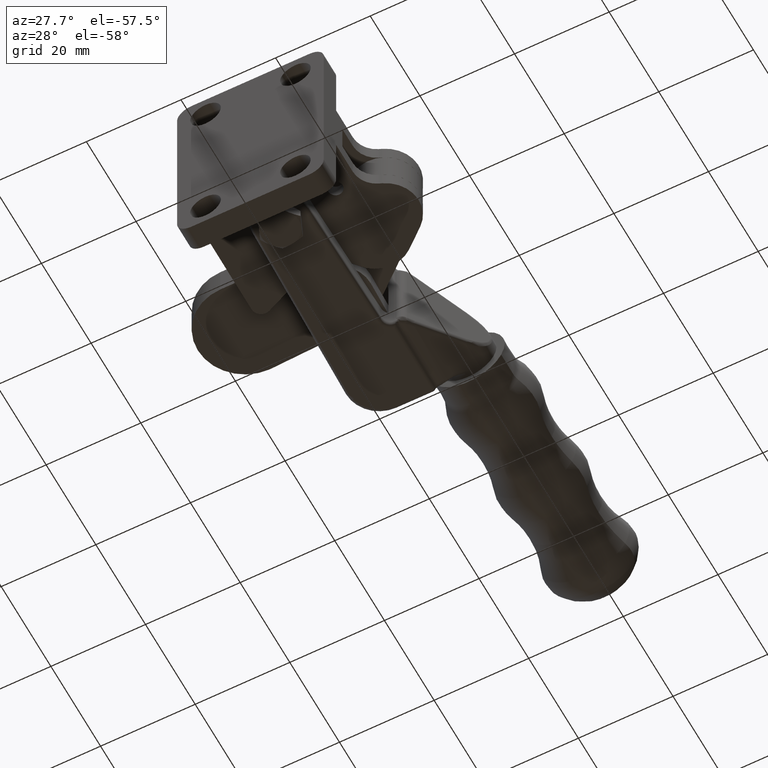
[diagram: clean part render]
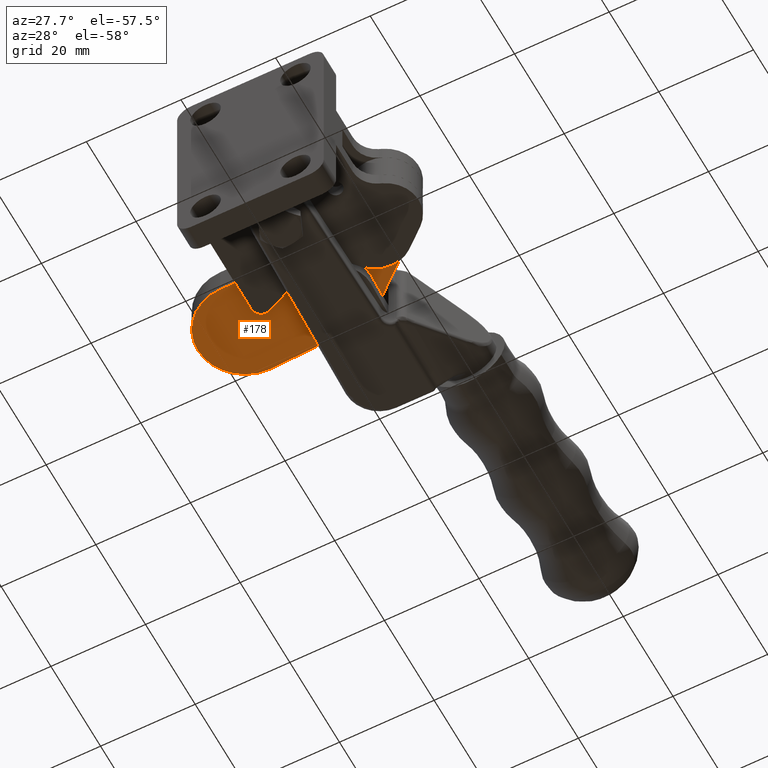
[diagram: same view with one face highlighted and labeled with its STEP entity id]
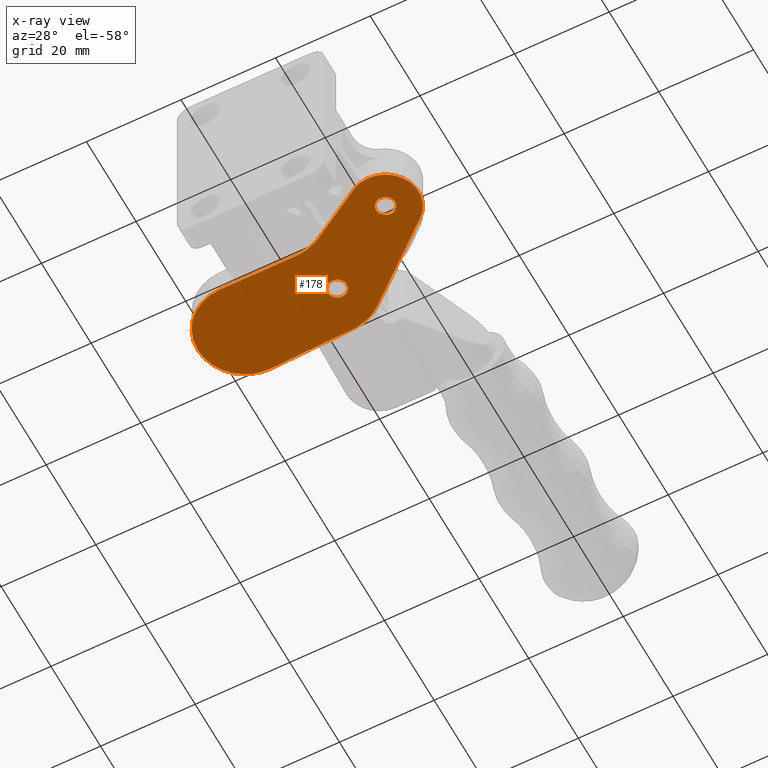
[diagram: x-ray of the same camera — body ghosted, the highlighted face saturated]
A machine part, auxiliary view. The second image highlights one B-rep face of the part: STEP entity #178.
The next image is the same camera in x-ray: the body ghosted, the highlighted face saturated — about 0% of this face is hidden behind the body in this view.
In plain terms, the highlighted planar face has unit normal (0, 0, 1).
Its self-contained STEP definition (entity closure, byte-faithful):
#9 = EDGE_CURVE ( 'NONE', #2739, #682, #1908, .T. ) ;
#144 = DIRECTION ( 'NONE',  ( 1.000000000000000000, 0.0000000000000000000, 0.0000000000000000000 ) ) ;
#146 = FACE_OUTER_BOUND ( 'NONE', #4898, .T. ) ;
#149 = EDGE_CURVE ( 'NONE', #3020, #4327, #3867, .T. ) ;
#178 = ADVANCED_FACE ( 'NONE', ( #146, #7559, #2011 ), #5273, .F. ) ;
#272 = AXIS2_PLACEMENT_3D ( 'NONE', #7434, #3274, #8154 ) ;
#313 = ORIENTED_EDGE ( 'NONE', *, *, #9, .F. ) ;
#348 = VERTEX_POINT ( 'NONE', #7626 ) ;
#405 = CARTESIAN_POINT ( 'NONE',  ( -11.69212390313459300, 18.94870788012530500, -3.000000000000000000 ) ) ;
#465 = DIRECTION ( 'NONE',  ( 0.0000000000000000000, 0.0000000000000000000, 1.000000000000000000 ) ) ;
#507 = ORIENTED_EDGE ( 'NONE', *, *, #1785, .F. ) ;
#515 = CARTESIAN_POINT ( 'NONE',  ( -14.63132215791628400, 0.5852726611852848700, -3.000000000000000000 ) ) ;
#525 = AXIS2_PLACEMENT_3D ( 'NONE', #4675, #465, #5372 ) ;
#538 = EDGE_LOOP ( 'NONE', ( #5590, #3150 ) ) ;
#579 = DIRECTION ( 'NONE',  ( 1.000000000000000000, 0.0000000000000000000, 0.0000000000000000000 ) ) ;
#682 = VERTEX_POINT ( 'NONE', #820 ) ;
#704 = EDGE_CURVE ( 'NONE', #8363, #772, #2981, .T. ) ;
#772 = VERTEX_POINT ( 'NONE', #405 ) ;
#820 = CARTESIAN_POINT ( 'NONE',  ( -45.99999999999999300, 12.00000000000000000, -3.000000000000000000 ) ) ;
#980 = ORIENTED_EDGE ( 'NONE', *, *, #5103, .F. ) ;
#1021 = ORIENTED_EDGE ( 'NONE', *, *, #6741, .F. ) ;
#1022 = DIRECTION ( 'NONE',  ( 0.0000000000000000000, 0.0000000000000000000, 1.000000000000000000 ) ) ;
#1254 = ORIENTED_EDGE ( 'NONE', *, *, #8752, .F. ) ;
#1357 = CARTESIAN_POINT ( 'NONE',  ( 2.000000000000000000, 2.449293598294706400E-016, -3.000000000000000000 ) ) ;
#1578 = CARTESIAN_POINT ( 'NONE',  ( -18.52999999999999800, 12.01000000000000000, -3.000000000000000000 ) ) ;
#1596 = ORIENTED_EDGE ( 'NONE', *, *, #1706, .F. ) ;
#1706 = EDGE_CURVE ( 'NONE', #772, #5975, #5257, .T. ) ;
#1767 = DIRECTION ( 'NONE',  ( 0.8585272661185280300, -0.5127679137105266600, 0.0000000000000000000 ) ) ;
#1785 = EDGE_CURVE ( 'NONE', #348, #8363, #6870, .T. ) ;
#1801 = AXIS2_PLACEMENT_3D ( 'NONE', #5201, #3056, #144 ) ;
#1820 = DIRECTION ( 'NONE',  ( 1.000000000000000000, 0.0000000000000000000, 0.0000000000000000000 ) ) ;
#1847 = CARTESIAN_POINT ( 'NONE',  ( -11.69212390313459700, 18.94870788012530100, -3.000000000000000000 ) ) ;
#1908 = CIRCLE ( 'NONE', #2609, 9.999999999999994700 ) ;
#2011 = FACE_BOUND ( 'NONE', #538, .T. ) ;
#2144 = CARTESIAN_POINT ( 'NONE',  ( -36.00000000000000000, 2.000000000000005300, -3.000000000000000000 ) ) ;
#2165 = DIRECTION ( 'NONE',  ( 0.0000000000000000000, 0.0000000000000000000, 1.000000000000000000 ) ) ;
#2274 = CIRCLE ( 'NONE', #272, 9.999999999999994700 ) ;
#2519 = DIRECTION ( 'NONE',  ( 1.000000000000000000, 0.0000000000000000000, -0.0000000000000000000 ) ) ;
#2609 = AXIS2_PLACEMENT_3D ( 'NONE', #3543, #7710, #7003 ) ;
#2659 = AXIS2_PLACEMENT_3D ( 'NONE', #2947, #7809, #3645 ) ;
#2739 = VERTEX_POINT ( 'NONE', #4241 ) ;
#2819 = AXIS2_PLACEMENT_3D ( 'NONE', #5219, #1022, #5927 ) ;
#2947 = CARTESIAN_POINT ( 'NONE',  ( -19.75900129502155200, -7.999999999999992900, -3.000000000000000000 ) ) ;
#2981 = LINE ( 'NONE', #1847, #4844 ) ;
#3020 = VERTEX_POINT ( 'NONE', #1357 ) ;
#3056 = DIRECTION ( 'NONE',  ( 0.0000000000000000000, 0.0000000000000000000, 1.000000000000000000 ) ) ;
#3150 = ORIENTED_EDGE ( 'NONE', *, *, #149, .T. ) ;
#3274 = DIRECTION ( 'NONE',  ( 0.0000000000000000000, 0.0000000000000000000, 1.000000000000000000 ) ) ;
#3436 = CIRCLE ( 'NONE', #525, 2.000000000000000000 ) ;
#3520 = DIRECTION ( 'NONE',  ( 1.000000000000000000, 0.0000000000000000000, 0.0000000000000000000 ) ) ;
#3543 = CARTESIAN_POINT ( 'NONE',  ( -36.00000000000000000, 12.00000000000000000, -3.000000000000000000 ) ) ;
#3546 = CARTESIAN_POINT ( 'NONE',  ( -14.52999999999999900, 12.01000000000000000, -3.000000000000000000 ) ) ;
#3615 = EDGE_CURVE ( 'NONE', #7963, #7064, #8930, .T. ) ;
#3645 = DIRECTION ( 'NONE',  ( 1.000000000000000000, 0.0000000000000000000, 0.0000000000000000000 ) ) ;
#3660 = LINE ( 'NONE', #7823, #7135 ) ;
#3828 = LINE ( 'NONE', #5964, #7091 ) ;
#3867 = CIRCLE ( 'NONE', #6627, 2.000000000000000000 ) ;
#4062 = CARTESIAN_POINT ( 'NONE',  ( -17.72914583204646600, 21.28062218045600700, -3.000000000000000000 ) ) ;
#4146 = AXIS2_PLACEMENT_3D ( 'NONE', #6185, #7882, #579 ) ;
#4147 = DIRECTION ( 'NONE',  ( -0.7660444431189772400, 0.6427876096865403600, -0.0000000000000000000 ) ) ;
#4241 = CARTESIAN_POINT ( 'NONE',  ( -36.10599461755926100, 21.99943824127377600, -3.000000000000000000 ) ) ;
#4246 = EDGE_CURVE ( 'NONE', #5725, #7154, #4662, .T. ) ;
#4327 = VERTEX_POINT ( 'NONE', #8544 ) ;
#4363 = ORIENTED_EDGE ( 'NONE', *, *, #3615, .F. ) ;
#4369 = DIRECTION ( 'NONE',  ( -0.9992358731520467600, 0.03908541679535369700, -0.0000000000000000000 ) ) ;
#4537 = EDGE_CURVE ( 'NONE', #4327, #3020, #3436, .T. ) ;
#4558 = EDGE_LOOP ( 'NONE', ( #5804, #6922 ) ) ;
#4610 = CARTESIAN_POINT ( 'NONE',  ( 0.0000000000000000000, 0.0000000000000000000, -3.000000000000000000 ) ) ;
#4662 = CIRCLE ( 'NONE', #7400, 2.000000000000000000 ) ;
#4675 = CARTESIAN_POINT ( 'NONE',  ( 0.0000000000000000000, 0.0000000000000000000, -3.000000000000000000 ) ) ;
#4844 = VECTOR ( 'NONE', #4147, 999.9999999999998900 ) ;
#4898 = EDGE_LOOP ( 'NONE', ( #507, #6153, #1021, #4363, #1254, #313, #980, #1596, #6888 ) ) ;
#5103 = EDGE_CURVE ( 'NONE', #5975, #2739, #3660, .T. ) ;
#5165 = EDGE_CURVE ( 'NONE', #7154, #5725, #7907, .T. ) ;
#5201 = CARTESIAN_POINT ( 'NONE',  ( -18.12000000000000100, 11.28826344893553500, -3.000000000000000000 ) ) ;
#5219 = CARTESIAN_POINT ( 'NONE',  ( -16.53000000000000100, 12.01000000000000000, -3.000000000000000000 ) ) ;
#5257 = CIRCLE ( 'NONE', #1801, 10.00000000000000000 ) ;
#5273 = PLANE ( 'NONE',  #8043 ) ;
#5299 = CARTESIAN_POINT ( 'NONE',  ( 0.0000000000000000000, 0.0000000000000000000, -3.000000000000000000 ) ) ;
#5372 = DIRECTION ( 'NONE',  ( 1.000000000000000000, 0.0000000000000000000, 0.0000000000000000000 ) ) ;
#5590 = ORIENTED_EDGE ( 'NONE', *, *, #4537, .T. ) ;
#5725 = VERTEX_POINT ( 'NONE', #3546 ) ;
#5804 = ORIENTED_EDGE ( 'NONE', *, *, #5165, .T. ) ;
#5927 = DIRECTION ( 'NONE',  ( 1.000000000000000000, 0.0000000000000000000, 0.0000000000000000000 ) ) ;
#5964 = CARTESIAN_POINT ( 'NONE',  ( -14.63132215791628400, 0.5852726611852848700, -3.000000000000000000 ) ) ;
#5975 = VERTEX_POINT ( 'NONE', #4062 ) ;
#6019 = DIRECTION ( 'NONE',  ( 0.0000000000000000000, 0.0000000000000000000, 1.000000000000000000 ) ) ;
#6153 = ORIENTED_EDGE ( 'NONE', *, *, #8038, .F. ) ;
#6185 = CARTESIAN_POINT ( 'NONE',  ( 0.0000000000000000000, 0.0000000000000000000, -3.000000000000000000 ) ) ;
#6354 = CARTESIAN_POINT ( 'NONE',  ( -16.53000000000000100, 12.01000000000000000, -3.000000000000000000 ) ) ;
#6627 = AXIS2_PLACEMENT_3D ( 'NONE', #5299, #6019, #1820 ) ;
#6682 = DIRECTION ( 'NONE',  ( 0.0000000000000000000, 0.0000000000000000000, 1.000000000000000000 ) ) ;
#6741 = EDGE_CURVE ( 'NONE', #7064, #7782, #8974, .T. ) ;
#6870 = CIRCLE ( 'NONE', #4146, 7.000000000000015100 ) ;
#6888 = ORIENTED_EDGE ( 'NONE', *, *, #704, .F. ) ;
#6922 = ORIENTED_EDGE ( 'NONE', *, *, #4246, .T. ) ;
#7003 = DIRECTION ( 'NONE',  ( 1.000000000000000000, 0.0000000000000000000, 0.0000000000000000000 ) ) ;
#7031 = DIRECTION ( 'NONE',  ( 1.000000000000000000, 0.0000000000000000000, 0.0000000000000000000 ) ) ;
#7064 = VERTEX_POINT ( 'NONE', #8467 ) ;
#7091 = VECTOR ( 'NONE', #1767, 1000.000000000000100 ) ;
#7135 = VECTOR ( 'NONE', #4369, 1000.000000000000200 ) ;
#7154 = VERTEX_POINT ( 'NONE', #1578 ) ;
#7400 = AXIS2_PLACEMENT_3D ( 'NONE', #6354, #2165, #7031 ) ;
#7434 = CARTESIAN_POINT ( 'NONE',  ( -36.00000000000000000, 12.00000000000000000, -3.000000000000000000 ) ) ;
#7559 = FACE_BOUND ( 'NONE', #4558, .T. ) ;
#7626 = CARTESIAN_POINT ( 'NONE',  ( -3.589375395973696000, -6.009690862829709000, -3.000000000000000000 ) ) ;
#7710 = DIRECTION ( 'NONE',  ( 0.0000000000000000000, 0.0000000000000000000, 1.000000000000000000 ) ) ;
#7782 = VERTEX_POINT ( 'NONE', #515 ) ;
#7809 = DIRECTION ( 'NONE',  ( -0.0000000000000000000, -0.0000000000000000000, -1.000000000000000000 ) ) ;
#7823 = CARTESIAN_POINT ( 'NONE',  ( -36.10599461755926100, 21.99943824127377600, -3.000000000000000000 ) ) ;
#7882 = DIRECTION ( 'NONE',  ( 0.0000000000000000000, 0.0000000000000000000, 1.000000000000000000 ) ) ;
#7907 = CIRCLE ( 'NONE', #2819, 2.000000000000000000 ) ;
#7963 = VERTEX_POINT ( 'NONE', #8664 ) ;
#8038 = EDGE_CURVE ( 'NONE', #7782, #348, #3828, .T. ) ;
#8043 = AXIS2_PLACEMENT_3D ( 'NONE', #4610, #6682, #2519 ) ;
#8154 = DIRECTION ( 'NONE',  ( 1.000000000000000000, 0.0000000000000000000, 0.0000000000000000000 ) ) ;
#8285 = CARTESIAN_POINT ( 'NONE',  ( 4.499513267805790300, 5.362311101832849800, -3.000000000000000000 ) ) ;
#8363 = VERTEX_POINT ( 'NONE', #8285 ) ;
#8467 = CARTESIAN_POINT ( 'NONE',  ( -19.75900129502155200, 2.000000000000005300, -3.000000000000000000 ) ) ;
#8544 = CARTESIAN_POINT ( 'NONE',  ( -2.000000000000000000, 0.0000000000000000000, -3.000000000000000000 ) ) ;
#8664 = CARTESIAN_POINT ( 'NONE',  ( -36.00000000000000000, 2.000000000000005300, -3.000000000000000000 ) ) ;
#8702 = VECTOR ( 'NONE', #3520, 1000.000000000000000 ) ;
#8752 = EDGE_CURVE ( 'NONE', #682, #7963, #2274, .T. ) ;
#8930 = LINE ( 'NONE', #2144, #8702 ) ;
#8974 = CIRCLE ( 'NONE', #2659, 9.999999999999998200 ) ;